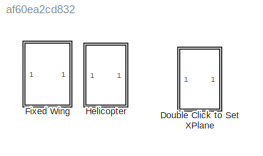
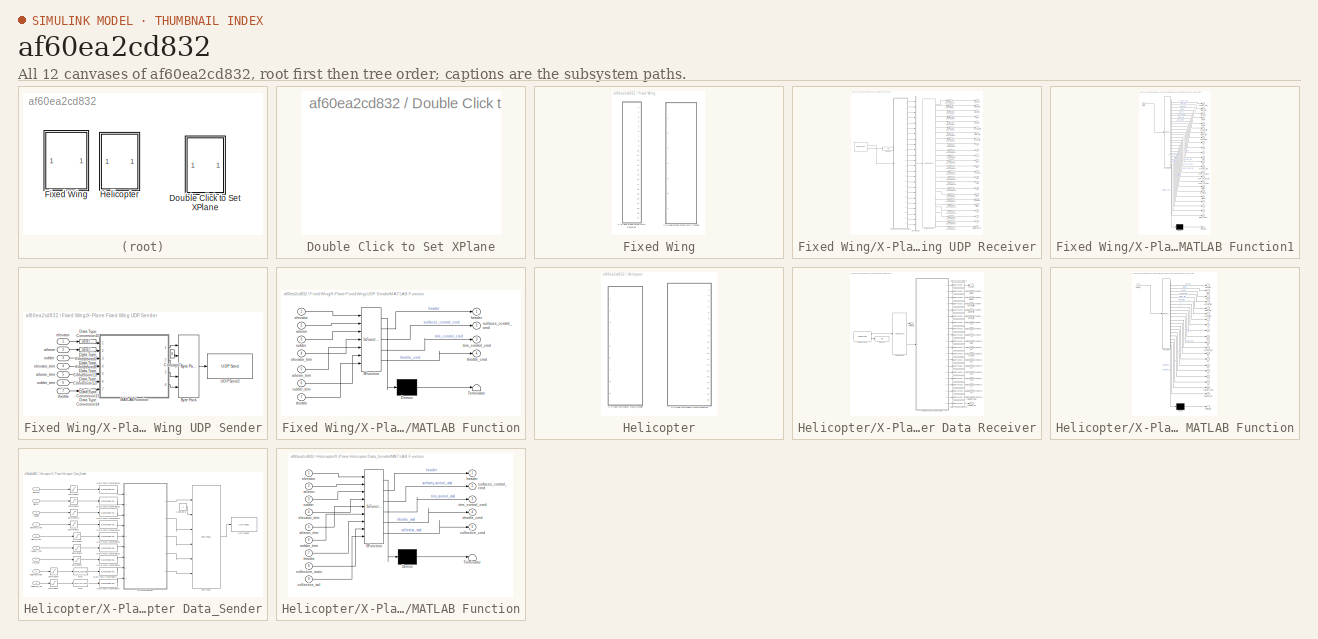
[diagram: thumbnail index - all 12 canvases of the model, root first then tree order]
MODEL slx_af60ea2cd832
KIND library
CONFIG AbsTol = auto
CONFIG EnableMultiTasking = on
CONFIG FixedStep = auto
CONFIG MaxStep = auto
CONFIG MinStep = auto
CONFIG RelTol = 1e-3
CONFIG SampleTimeConstraint = Unconstrained
CONFIG SolverName = ode45
CONFIG StartTime = 0.0
CONFIG StopTime = 10.0
BLOCK [SubSystem] Double Click to Set XPlane
  OpenFcn = selecting_parameters()
  Ports = []
  RequestExecContextInheritance = off
BLOCK [SubSystem] Fixed Wing
  Ports = []
  RequestExecContextInheritance = off
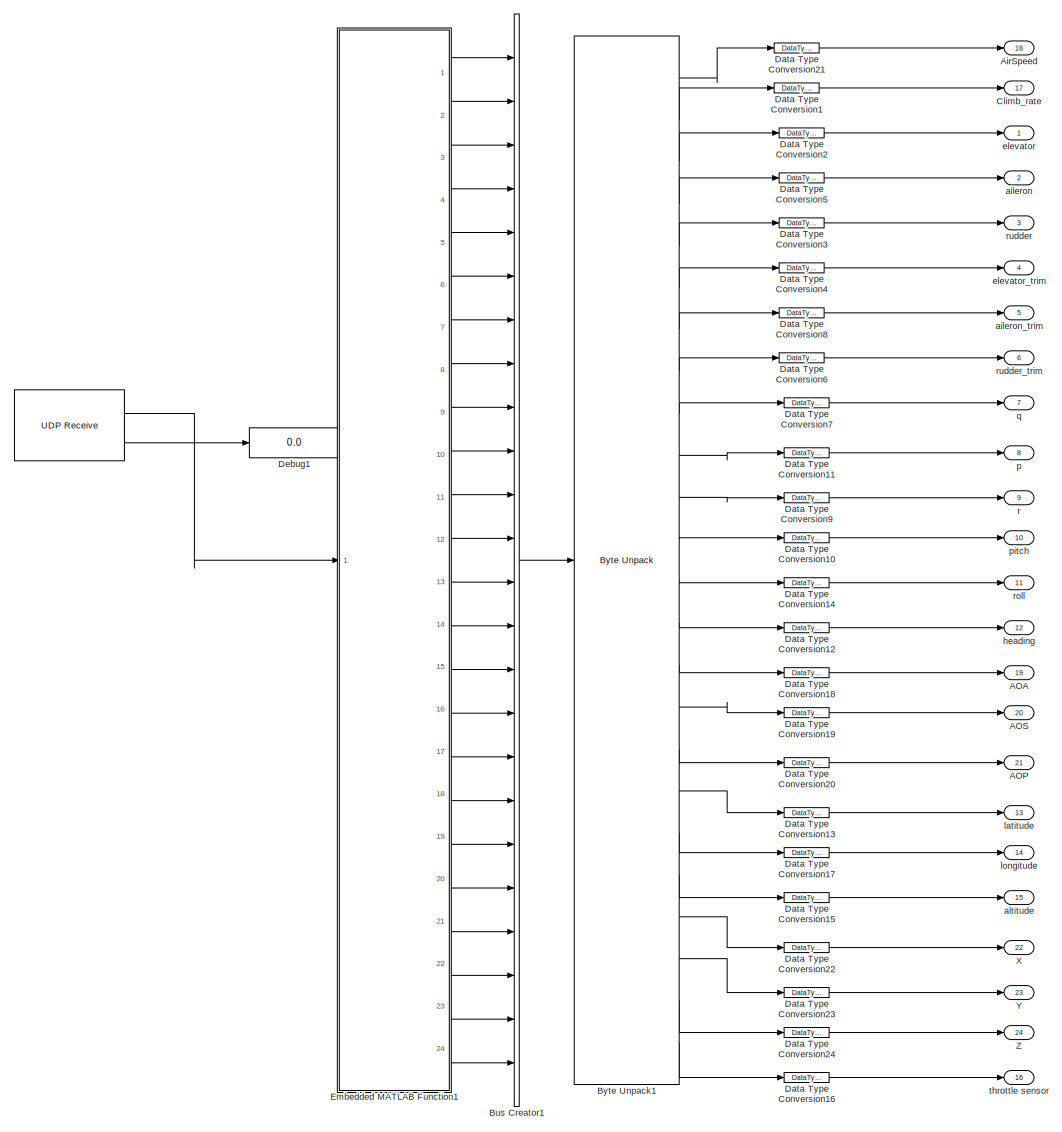
[diagram: Fixed Wing/X-Plane Fixed Wing UDP Receiver - part 1/1, most of the canvas]
BLOCK [SubSystem] Fixed Wing/X-Plane Fixed Wing UDP Receiver
  Ports = [0, 24]
  RequestExecContextInheritance = off
BLOCK [Reference] Fixed Wing/X-Plane Fixed Wing UDP Receiver/      REF=dspnetwork/UDP Receive
  Ports = [0, 2]
  SourceBlock = dspnetwork/UDP Receive
  SourceProductBaseCode = SL
  SourceType = UDP Receive
BLOCK [Outport] Fixed Wing/X-Plane Fixed Wing UDP Receiver/AOA
  Port = 19
BLOCK [Outport] Fixed Wing/X-Plane Fixed Wing UDP Receiver/AOP
  Port = 21
BLOCK [Outport] Fixed Wing/X-Plane Fixed Wing UDP Receiver/AOS
  Port = 20
BLOCK [Outport] Fixed Wing/X-Plane Fixed Wing UDP Receiver/AirSpeed
  Port = 18
BLOCK [BusCreator] Fixed Wing/X-Plane Fixed Wing UDP Receiver/Bus Creator1
  DisplayOption = bar
  InheritFromInputs = on
  Inputs = 24
  Ports = [24, 1]
BLOCK [Reference] Fixed Wing/X-Plane Fixed Wing UDP Receiver/Byte Unpack1  REF=etargetslib/Byte Unpack
  Ports = [1, 24]
  SourceBlock = etargetslib/Byte Unpack
  SourceProductBaseCode = ME
  SourceType = Byte Unpack
BLOCK [Outport] Fixed Wing/X-Plane Fixed Wing UDP Receiver/Climb_rate
  Port = 17
BLOCK [DataTypeConversion] Fixed Wing/X-Plane Fixed Wing UDP Receiver/Data Type Conversion1
  OutDataTypeStr = double
  RndMeth = Floor
BLOCK [DataTypeConversion] Fixed Wing/X-Plane Fixed Wing UDP Receiver/Data Type Conversion10
  OutDataTypeStr = double
  RndMeth = Floor
BLOCK [DataTypeConversion] Fixed Wing/X-Plane Fixed Wing UDP Receiver/Data Type Conversion11
  OutDataTypeStr = double
  RndMeth = Floor
BLOCK [DataTypeConversion] Fixed Wing/X-Plane Fixed Wing UDP Receiver/Data Type Conversion12
  OutDataTypeStr = double
  RndMeth = Floor
BLOCK [DataTypeConversion] Fixed Wing/X-Plane Fixed Wing UDP Receiver/Data Type Conversion13
  OutDataTypeStr = double
  RndMeth = Floor
BLOCK [DataTypeConversion] Fixed Wing/X-Plane Fixed Wing UDP Receiver/Data Type Conversion14
  OutDataTypeStr = double
  RndMeth = Floor
BLOCK [DataTypeConversion] Fixed Wing/X-Plane Fixed Wing UDP Receiver/Data Type Conversion15
  OutDataTypeStr = double
  RndMeth = Floor
BLOCK [DataTypeConversion] Fixed Wing/X-Plane Fixed Wing UDP Receiver/Data Type Conversion16
  OutDataTypeStr = double
  RndMeth = Floor
BLOCK [DataTypeConversion] Fixed Wing/X-Plane Fixed Wing UDP Receiver/Data Type Conversion17
  OutDataTypeStr = double
  RndMeth = Floor
BLOCK [DataTypeConversion] Fixed Wing/X-Plane Fixed Wing UDP Receiver/Data Type Conversion18
  OutDataTypeStr = double
  RndMeth = Floor
BLOCK [DataTypeConversion] Fixed Wing/X-Plane Fixed Wing UDP Receiver/Data Type Conversion19
  OutDataTypeStr = double
  RndMeth = Floor
BLOCK [DataTypeConversion] Fixed Wing/X-Plane Fixed Wing UDP Receiver/Data Type Conversion2
  OutDataTypeStr = double
  RndMeth = Floor
BLOCK [DataTypeConversion] Fixed Wing/X-Plane Fixed Wing UDP Receiver/Data Type Conversion20
  OutDataTypeStr = double
  RndMeth = Floor
BLOCK [DataTypeConversion] Fixed Wing/X-Plane Fixed Wing UDP Receiver/Data Type Conversion21
  OutDataTypeStr = double
  RndMeth = Floor
BLOCK [DataTypeConversion] Fixed Wing/X-Plane Fixed Wing UDP Receiver/Data Type Conversion22
  OutDataTypeStr = double
  RndMeth = Floor
BLOCK [DataTypeConversion] Fixed Wing/X-Plane Fixed Wing UDP Receiver/Data Type Conversion23
  OutDataTypeStr = double
  RndMeth = Floor
BLOCK [DataTypeConversion] Fixed Wing/X-Plane Fixed Wing UDP Receiver/Data Type Conversion24
  OutDataTypeStr = double
  RndMeth = Floor
BLOCK [DataTypeConversion] Fixed Wing/X-Plane Fixed Wing UDP Receiver/Data Type Conversion3
  OutDataTypeStr = double
  RndMeth = Floor
BLOCK [DataTypeConversion] Fixed Wing/X-Plane Fixed Wing UDP Receiver/Data Type Conversion4
  OutDataTypeStr = double
  RndMeth = Floor
BLOCK [DataTypeConversion] Fixed Wing/X-Plane Fixed Wing UDP Receiver/Data Type Conversion5
  OutDataTypeStr = double
  RndMeth = Floor
BLOCK [DataTypeConversion] Fixed Wing/X-Plane Fixed Wing UDP Receiver/Data Type Conversion6
  OutDataTypeStr = double
  RndMeth = Floor
BLOCK [DataTypeConversion] Fixed Wing/X-Plane Fixed Wing UDP Receiver/Data Type Conversion7
  OutDataTypeStr = double
  RndMeth = Floor
BLOCK [DataTypeConversion] Fixed Wing/X-Plane Fixed Wing UDP Receiver/Data Type Conversion8
  OutDataTypeStr = double
  RndMeth = Floor
BLOCK [DataTypeConversion] Fixed Wing/X-Plane Fixed Wing UDP Receiver/Data Type Conversion9
  OutDataTypeStr = double
  RndMeth = Floor
BLOCK [Display] Fixed Wing/X-Plane Fixed Wing UDP Receiver/Debug1 
  Decimation = 1
  Ports = [1]
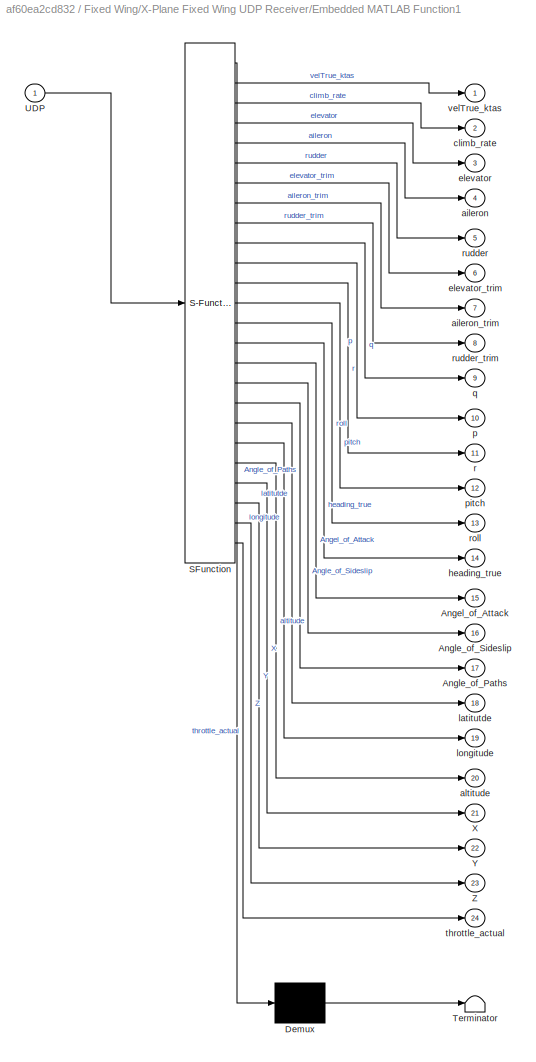
BLOCK [SubSystem] Fixed Wing/X-Plane Fixed Wing UDP Receiver/Embedded MATLAB Function1
  ErrorFcn = Stateflow.Translate.translate
  PermitHierarchicalResolution = ExplicitOnly
  Ports = [1, 24]
  RequestExecContextInheritance = off
  SFBlockType = MATLAB Function
  TreatAsAtomicUnit = on
BLOCK [Demux] Fixed Wing/X-Plane Fixed Wing UDP Receiver/Embedded MATLAB Function1/ Demux 
  Outputs = 1
  Ports = [1, 1]
BLOCK [S-Function] Fixed Wing/X-Plane Fixed Wing UDP Receiver/Embedded MATLAB Function1/ SFunction 
  EnableBusSupport = off
  FunctionName = sf_sfun
  PortCounts = [1 25]
  Ports = [1, 25]
  SFcnIsStateOwnerBlock = off
  SFunctionDeploymentMode = off
  Tag = Stateflow S-Function 1
BLOCK [Terminator] Fixed Wing/X-Plane Fixed Wing UDP Receiver/Embedded MATLAB Function1/ Terminator 
BLOCK [Outport] Fixed Wing/X-Plane Fixed Wing UDP Receiver/Embedded MATLAB Function1/Angel_of_Attack
  Port = 15
BLOCK [Outport] Fixed Wing/X-Plane Fixed Wing UDP Receiver/Embedded MATLAB Function1/Angle_of_Paths
  Port = 17
BLOCK [Outport] Fixed Wing/X-Plane Fixed Wing UDP Receiver/Embedded MATLAB Function1/Angle_of_Sideslip
  Port = 16
BLOCK [Inport] Fixed Wing/X-Plane Fixed Wing UDP Receiver/Embedded MATLAB Function1/UDP
BLOCK [Outport] Fixed Wing/X-Plane Fixed Wing UDP Receiver/Embedded MATLAB Function1/X
  Port = 21
BLOCK [Outport] Fixed Wing/X-Plane Fixed Wing UDP Receiver/Embedded MATLAB Function1/Y
  Port = 22
BLOCK [Outport] Fixed Wing/X-Plane Fixed Wing UDP Receiver/Embedded MATLAB Function1/Z
  Port = 23
BLOCK [Outport] Fixed Wing/X-Plane Fixed Wing UDP Receiver/Embedded MATLAB Function1/aileron
  Port = 4
BLOCK [Outport] Fixed Wing/X-Plane Fixed Wing UDP Receiver/Embedded MATLAB Function1/aileron_trim
  Port = 7
BLOCK [Outport] Fixed Wing/X-Plane Fixed Wing UDP Receiver/Embedded MATLAB Function1/altitude
  Port = 20
BLOCK [Outport] Fixed Wing/X-Plane Fixed Wing UDP Receiver/Embedded MATLAB Function1/climb_rate
  Port = 2
BLOCK [Outport] Fixed Wing/X-Plane Fixed Wing UDP Receiver/Embedded MATLAB Function1/elevator
  Port = 3
BLOCK [Outport] Fixed Wing/X-Plane Fixed Wing UDP Receiver/Embedded MATLAB Function1/elevator_trim
  Port = 6
BLOCK [Outport] Fixed Wing/X-Plane Fixed Wing UDP Receiver/Embedded MATLAB Function1/heading_true
  Port = 14
BLOCK [Outport] Fixed Wing/X-Plane Fixed Wing UDP Receiver/Embedded MATLAB Function1/latitutde
  Port = 18
BLOCK [Outport] Fixed Wing/X-Plane Fixed Wing UDP Receiver/Embedded MATLAB Function1/longitude
  Port = 19
BLOCK [Outport] Fixed Wing/X-Plane Fixed Wing UDP Receiver/Embedded MATLAB Function1/p
  Port = 10
BLOCK [Outport] Fixed Wing/X-Plane Fixed Wing UDP Receiver/Embedded MATLAB Function1/pitch
  Port = 12
BLOCK [Outport] Fixed Wing/X-Plane Fixed Wing UDP Receiver/Embedded MATLAB Function1/q
  Port = 9
BLOCK [Outport] Fixed Wing/X-Plane Fixed Wing UDP Receiver/Embedded MATLAB Function1/r
  Port = 11
BLOCK [Outport] Fixed Wing/X-Plane Fixed Wing UDP Receiver/Embedded MATLAB Function1/roll
  Port = 13
BLOCK [Outport] Fixed Wing/X-Plane Fixed Wing UDP Receiver/Embedded MATLAB Function1/rudder
  Port = 5
BLOCK [Outport] Fixed Wing/X-Plane Fixed Wing UDP Receiver/Embedded MATLAB Function1/rudder_trim
  Port = 8
BLOCK [Outport] Fixed Wing/X-Plane Fixed Wing UDP Receiver/Embedded MATLAB Function1/throttle_actual
  Port = 24
BLOCK [Outport] Fixed Wing/X-Plane Fixed Wing UDP Receiver/Embedded MATLAB Function1/velTrue_ktas
BLOCK [Outport] Fixed Wing/X-Plane Fixed Wing UDP Receiver/X
  Port = 22
BLOCK [Outport] Fixed Wing/X-Plane Fixed Wing UDP Receiver/Y
  Port = 23
BLOCK [Outport] Fixed Wing/X-Plane Fixed Wing UDP Receiver/Z
  Port = 24
BLOCK [Outport] Fixed Wing/X-Plane Fixed Wing UDP Receiver/aileron
  Port = 2
BLOCK [Outport] Fixed Wing/X-Plane Fixed Wing UDP Receiver/aileron_trim
  Port = 5
BLOCK [Outport] Fixed Wing/X-Plane Fixed Wing UDP Receiver/altitude
  Port = 15
BLOCK [Outport] Fixed Wing/X-Plane Fixed Wing UDP Receiver/elevator 
BLOCK [Outport] Fixed Wing/X-Plane Fixed Wing UDP Receiver/elevator_trim
  Port = 4
BLOCK [Outport] Fixed Wing/X-Plane Fixed Wing UDP Receiver/heading
  Port = 12
BLOCK [Outport] Fixed Wing/X-Plane Fixed Wing UDP Receiver/latitude
  Port = 13
BLOCK [Outport] Fixed Wing/X-Plane Fixed Wing UDP Receiver/longitude
  Port = 14
BLOCK [Outport] Fixed Wing/X-Plane Fixed Wing UDP Receiver/p
  Port = 8
BLOCK [Outport] Fixed Wing/X-Plane Fixed Wing UDP Receiver/pitch
  Port = 10
BLOCK [Outport] Fixed Wing/X-Plane Fixed Wing UDP Receiver/q
  Port = 7
BLOCK [Outport] Fixed Wing/X-Plane Fixed Wing UDP Receiver/r
  Port = 9
BLOCK [Outport] Fixed Wing/X-Plane Fixed Wing UDP Receiver/roll
  Port = 11
BLOCK [Outport] Fixed Wing/X-Plane Fixed Wing UDP Receiver/rudder
  Port = 3
BLOCK [Outport] Fixed Wing/X-Plane Fixed Wing UDP Receiver/rudder_trim
  Port = 6
BLOCK [Outport] Fixed Wing/X-Plane Fixed Wing UDP Receiver/throttle sensor
  Port = 16
BLOCK [SubSystem] Fixed Wing/X-Plane Fixed Wing UDP Sender
  Ports = [7]
  RequestExecContextInheritance = off
BLOCK [Reference] Fixed Wing/X-Plane Fixed Wing UDP Sender/Byte Pack  REF=etargetslib/Byte Pack
  Ports = [5, 1]
  SourceBlock = etargetslib/Byte Pack
  SourceProductBaseCode = ME
  SourceType = Byte pack
BLOCK [Constant] Fixed Wing/X-Plane Fixed Wing UDP Sender/Constant7
  OutDataTypeStr = uint8
  Value = 0
BLOCK [DataTypeConversion] Fixed Wing/X-Plane Fixed Wing UDP Sender/Data Type Conversion10
  OutDataTypeStr = single
  RndMeth = Floor
BLOCK [DataTypeConversion] Fixed Wing/X-Plane Fixed Wing UDP Sender/Data Type Conversion11
  OutDataTypeStr = single
  RndMeth = Floor
BLOCK [DataTypeConversion] Fixed Wing/X-Plane Fixed Wing UDP Sender/Data Type Conversion12
  OutDataTypeStr = single
  RndMeth = Floor
BLOCK [DataTypeConversion] Fixed Wing/X-Plane Fixed Wing UDP Sender/Data Type Conversion13
  OutDataTypeStr = single
  RndMeth = Floor
BLOCK [DataTypeConversion] Fixed Wing/X-Plane Fixed Wing UDP Sender/Data Type Conversion14
  OutDataTypeStr = single
  RndMeth = Floor
BLOCK [DataTypeConversion] Fixed Wing/X-Plane Fixed Wing UDP Sender/Data Type Conversion5
  OutDataTypeStr = single
  RndMeth = Floor
BLOCK [DataTypeConversion] Fixed Wing/X-Plane Fixed Wing UDP Sender/Data Type Conversion8
  OutDataTypeStr = single
  RndMeth = Floor
BLOCK [SubSystem] Fixed Wing/X-Plane Fixed Wing UDP Sender/MATLAB Function
  ErrorFcn = Stateflow.Translate.translate
  PermitHierarchicalResolution = ExplicitOnly
  Ports = [7, 4]
  RequestExecContextInheritance = off
  SFBlockType = MATLAB Function
  TreatAsAtomicUnit = on
BLOCK [Demux] Fixed Wing/X-Plane Fixed Wing UDP Sender/MATLAB Function/ Demux 
  Outputs = 1
  Ports = [1, 1]
BLOCK [S-Function] Fixed Wing/X-Plane Fixed Wing UDP Sender/MATLAB Function/ SFunction 
  EnableBusSupport = off
  FunctionName = sf_sfun
  PortCounts = [7 5]
  Ports = [7, 5]
  SFcnIsStateOwnerBlock = off
  SFunctionDeploymentMode = off
  Tag = Stateflow S-Function 4
BLOCK [Terminator] Fixed Wing/X-Plane Fixed Wing UDP Sender/MATLAB Function/ Terminator 
BLOCK [Inport] Fixed Wing/X-Plane Fixed Wing UDP Sender/MATLAB Function/aileron
  Port = 2
BLOCK [Inport] Fixed Wing/X-Plane Fixed Wing UDP Sender/MATLAB Function/aileron_trim
  Port = 5
BLOCK [Inport] Fixed Wing/X-Plane Fixed Wing UDP Sender/MATLAB Function/elevator
BLOCK [Inport] Fixed Wing/X-Plane Fixed Wing UDP Sender/MATLAB Function/elevator_trim
  Port = 4
BLOCK [Outport] Fixed Wing/X-Plane Fixed Wing UDP Sender/MATLAB Function/header
BLOCK [Inport] Fixed Wing/X-Plane Fixed Wing UDP Sender/MATLAB Function/rudder
  Port = 3
BLOCK [Inport] Fixed Wing/X-Plane Fixed Wing UDP Sender/MATLAB Function/rudder_trim
  Port = 6
BLOCK [Outport] Fixed Wing/X-Plane Fixed Wing UDP Sender/MATLAB Function/surfaces_control_cmd
  Port = 2
BLOCK [Inport] Fixed Wing/X-Plane Fixed Wing UDP Sender/MATLAB Function/throttle
  Port = 7
BLOCK [Outport] Fixed Wing/X-Plane Fixed Wing UDP Sender/MATLAB Function/throttle_cmd
  Port = 4
BLOCK [Outport] Fixed Wing/X-Plane Fixed Wing UDP Sender/MATLAB Function/trim_control_cmd
  Port = 3
BLOCK [Reference] Fixed Wing/X-Plane Fixed Wing UDP Sender/UDP Send2  REF=dspnetwork/UDP Send
  Ports = [1]
  SourceBlock = dspnetwork/UDP Send
  SourceProductBaseCode = SL
  SourceType = UDP Send
BLOCK [Inport] Fixed Wing/X-Plane Fixed Wing UDP Sender/aileron
  Port = 2
BLOCK [Inport] Fixed Wing/X-Plane Fixed Wing UDP Sender/aileron_trim
  Port = 5
BLOCK [Inport] Fixed Wing/X-Plane Fixed Wing UDP Sender/elevator
BLOCK [Inport] Fixed Wing/X-Plane Fixed Wing UDP Sender/elevator_trim
  Port = 4
BLOCK [Inport] Fixed Wing/X-Plane Fixed Wing UDP Sender/rudder
  Port = 3
BLOCK [Inport] Fixed Wing/X-Plane Fixed Wing UDP Sender/rudder_trim
  Port = 6
BLOCK [Inport] Fixed Wing/X-Plane Fixed Wing UDP Sender/throttle
  Port = 7
BLOCK [SubSystem] Helicopter
  Ports = []
  RequestExecContextInheritance = off
BLOCK [SubSystem] Helicopter/X-Plane Helicopter Data Receiver
  AncestorBlock = DU2SRI_Heli_Sim/X-Plane Communication Blockset\n/X-Plane Data Receiver
  Ports = [0, 20]
  RequestExecContextInheritance = off
BLOCK [Reference] Helicopter/X-Plane Helicopter Data Receiver/Byte Unpack  REF=etargetslib/Byte Unpack
  Ports = [1, 2]
  SourceBlock = etargetslib/Byte Unpack
  SourceProductBaseCode = ME
  SourceType = Byte Unpack
BLOCK [DataTypeConversion] Helicopter/X-Plane Helicopter Data Receiver/Data Type Conversion1
  OutDataTypeStr = double
  RndMeth = Floor
BLOCK [DataTypeConversion] Helicopter/X-Plane Helicopter Data Receiver/Data Type Conversion10
  OutDataTypeStr = double
  RndMeth = Floor
BLOCK [DataTypeConversion] Helicopter/X-Plane Helicopter Data Receiver/Data Type Conversion11
  OutDataTypeStr = double
  RndMeth = Floor
BLOCK [DataTypeConversion] Helicopter/X-Plane Helicopter Data Receiver/Data Type Conversion12
  OutDataTypeStr = double
  RndMeth = Floor
BLOCK [DataTypeConversion] Helicopter/X-Plane Helicopter Data Receiver/Data Type Conversion13
  OutDataTypeStr = double
  RndMeth = Floor
BLOCK [DataTypeConversion] Helicopter/X-Plane Helicopter Data Receiver/Data Type Conversion14
  OutDataTypeStr = double
  RndMeth = Floor
BLOCK [DataTypeConversion] Helicopter/X-Plane Helicopter Data Receiver/Data Type Conversion15
  OutDataTypeStr = double
  RndMeth = Floor
BLOCK [DataTypeConversion] Helicopter/X-Plane Helicopter Data Receiver/Data Type Conversion16
  OutDataTypeStr = double
  RndMeth = Floor
BLOCK [DataTypeConversion] Helicopter/X-Plane Helicopter Data Receiver/Data Type Conversion17
  OutDataTypeStr = double
  RndMeth = Floor
BLOCK [DataTypeConversion] Helicopter/X-Plane Helicopter Data Receiver/Data Type Conversion18
  OutDataTypeStr = double
  RndMeth = Floor
BLOCK [DataTypeConversion] Helicopter/X-Plane Helicopter Data Receiver/Data Type Conversion19
  OutDataTypeStr = double
  RndMeth = Floor
BLOCK [DataTypeConversion] Helicopter/X-Plane Helicopter Data Receiver/Data Type Conversion2
  OutDataTypeStr = double
  RndMeth = Floor
BLOCK [DataTypeConversion] Helicopter/X-Plane Helicopter Data Receiver/Data Type Conversion20
  OutDataTypeStr = double
  RndMeth = Floor
BLOCK [DataTypeConversion] Helicopter/X-Plane Helicopter Data Receiver/Data Type Conversion3
  OutDataTypeStr = double
  RndMeth = Floor
BLOCK [DataTypeConversion] Helicopter/X-Plane Helicopter Data Receiver/Data Type Conversion4
  OutDataTypeStr = double
  RndMeth = Floor
BLOCK [DataTypeConversion] Helicopter/X-Plane Helicopter Data Receiver/Data Type Conversion5
  OutDataTypeStr = double
  RndMeth = Floor
BLOCK [DataTypeConversion] Helicopter/X-Plane Helicopter Data Receiver/Data Type Conversion6
  OutDataTypeStr = double
  RndMeth = Floor
BLOCK [DataTypeConversion] Helicopter/X-Plane Helicopter Data Receiver/Data Type Conversion7
  OutDataTypeStr = double
  RndMeth = Floor
BLOCK [DataTypeConversion] Helicopter/X-Plane Helicopter Data Receiver/Data Type Conversion8
  OutDataTypeStr = double
  RndMeth = Floor
BLOCK [DataTypeConversion] Helicopter/X-Plane Helicopter Data Receiver/Data Type Conversion9
  OutDataTypeStr = double
  RndMeth = Floor
BLOCK [Display] Helicopter/X-Plane Helicopter Data Receiver/Debug1 
  Decimation = 1
  Ports = [1]
BLOCK [SubSystem] Helicopter/X-Plane Helicopter Data Receiver/Embedded MATLAB Function
  ErrorFcn = Stateflow.Translate.translate
  PermitHierarchicalResolution = ExplicitOnly
  Ports = [1, 20]
  RequestExecContextInheritance = off
  SFBlockType = MATLAB Function
  TreatAsAtomicUnit = on
BLOCK [Demux] Helicopter/X-Plane Helicopter Data Receiver/Embedded MATLAB Function/ Demux 
  Outputs = 1
  Ports = [1, 1]
BLOCK [S-Function] Helicopter/X-Plane Helicopter Data Receiver/Embedded MATLAB Function/ SFunction 
  EnableBusSupport = off
  FunctionName = sf_sfun
  PortCounts = [1 21]
  Ports = [1, 21]
  SFcnIsStateOwnerBlock = off
  SFunctionDeploymentMode = off
  Tag = Stateflow S-Function 13
BLOCK [Terminator] Helicopter/X-Plane Helicopter Data Receiver/Embedded MATLAB Function/ Terminator 
BLOCK [Outport] Helicopter/X-Plane Helicopter Data Receiver/Embedded MATLAB Function/Px
  Port = 13
BLOCK [Outport] Helicopter/X-Plane Helicopter Data Receiver/Embedded MATLAB Function/Py
  Port = 14
BLOCK [Outport] Helicopter/X-Plane Helicopter Data Receiver/Embedded MATLAB Function/Pz
  Port = 15
BLOCK [Outport] Helicopter/X-Plane Helicopter Data Receiver/Embedded MATLAB Function/Vx
  Port = 16
BLOCK [Outport] Helicopter/X-Plane Helicopter Data Receiver/Embedded MATLAB Function/Vy
  Port = 17
BLOCK [Outport] Helicopter/X-Plane Helicopter Data Receiver/Embedded MATLAB Function/Vz
  Port = 18
BLOCK [Outport] Helicopter/X-Plane Helicopter Data Receiver/Embedded MATLAB Function/aileron
  Port = 2
BLOCK [Outport] Helicopter/X-Plane Helicopter Data Receiver/Embedded MATLAB Function/aileron_trim
  Port = 5
BLOCK [Outport] Helicopter/X-Plane Helicopter Data Receiver/Embedded MATLAB Function/collective_main
  Port = 19
BLOCK [Outport] Helicopter/X-Plane Helicopter Data Receiver/Embedded MATLAB Function/collective_tail
  Port = 20
BLOCK [Inport] Helicopter/X-Plane Helicopter Data Receiver/Embedded MATLAB Function/data_in
BLOCK [Outport] Helicopter/X-Plane Helicopter Data Receiver/Embedded MATLAB Function/elevator
BLOCK [Outport] Helicopter/X-Plane Helicopter Data Receiver/Embedded MATLAB Function/elevator_trim
  Port = 4
BLOCK [Outport] Helicopter/X-Plane Helicopter Data Receiver/Embedded MATLAB Function/heading_true
  Port = 12
BLOCK [Outport] Helicopter/X-Plane Helicopter Data Receiver/Embedded MATLAB Function/p
  Port = 8
BLOCK [Outport] Helicopter/X-Plane Helicopter Data Receiver/Embedded MATLAB Function/pitch
  Port = 10
BLOCK [Outport] Helicopter/X-Plane Helicopter Data Receiver/Embedded MATLAB Function/q
  Port = 7
BLOCK [Outport] Helicopter/X-Plane Helicopter Data Receiver/Embedded MATLAB Function/r
  Port = 9
BLOCK [Outport] Helicopter/X-Plane Helicopter Data Receiver/Embedded MATLAB Function/roll
  Port = 11
BLOCK [Outport] Helicopter/X-Plane Helicopter Data Receiver/Embedded MATLAB Function/rudder
  Port = 3
BLOCK [Outport] Helicopter/X-Plane Helicopter Data Receiver/Embedded MATLAB Function/rudder_trim
  Port = 6
BLOCK [Outport] Helicopter/X-Plane Helicopter Data Receiver/Px 2
  Port = 13
BLOCK [Outport] Helicopter/X-Plane Helicopter Data Receiver/Py
  Port = 14
BLOCK [Outport] Helicopter/X-Plane Helicopter Data Receiver/Pz
  Port = 15
BLOCK [Terminator] Helicopter/X-Plane Helicopter Data Receiver/Terminator
BLOCK [Reference] Helicopter/X-Plane Helicopter Data Receiver/UDP Receive3  REF=dspnetwork/UDP Receive
  Ports = [0, 2]
  SourceBlock = dspnetwork/UDP Receive
  SourceProductBaseCode = SL
  SourceType = UDP Receive
BLOCK [Outport] Helicopter/X-Plane Helicopter Data Receiver/Vx
  Port = 16
BLOCK [Outport] Helicopter/X-Plane Helicopter Data Receiver/Vy
  Port = 17
BLOCK [Outport] Helicopter/X-Plane Helicopter Data Receiver/Vz
  Port = 18
BLOCK [Outport] Helicopter/X-Plane Helicopter Data Receiver/aileron
  Port = 2
BLOCK [Outport] Helicopter/X-Plane Helicopter Data Receiver/aileron_trim
  Port = 5
BLOCK [Outport] Helicopter/X-Plane Helicopter Data Receiver/collective_main
  Port = 19
BLOCK [Outport] Helicopter/X-Plane Helicopter Data Receiver/collective_tail
  Port = 20
BLOCK [Outport] Helicopter/X-Plane Helicopter Data Receiver/elevator 
BLOCK [Outport] Helicopter/X-Plane Helicopter Data Receiver/elevator_trim
  Port = 4
BLOCK [Outport] Helicopter/X-Plane Helicopter Data Receiver/heading
  Port = 12
BLOCK [Outport] Helicopter/X-Plane Helicopter Data Receiver/p
  Port = 8
BLOCK [Outport] Helicopter/X-Plane Helicopter Data Receiver/pitch
  Port = 10
BLOCK [Outport] Helicopter/X-Plane Helicopter Data Receiver/q
  Port = 7
BLOCK [Outport] Helicopter/X-Plane Helicopter Data Receiver/r
  Port = 9
BLOCK [Outport] Helicopter/X-Plane Helicopter Data Receiver/roll
  Port = 11
BLOCK [Outport] Helicopter/X-Plane Helicopter Data Receiver/rudder
  Port = 3
BLOCK [Outport] Helicopter/X-Plane Helicopter Data Receiver/rudder_trim
  Port = 6
BLOCK [SubSystem] Helicopter/X-Plane Helicopter Data_Sender
  AncestorBlock = DU2SRI_Heli_Sim/X-Plane Communication Blockset\n/X-Plane Data_Sender
  Ports = [9]
  RequestExecContextInheritance = off
BLOCK [Reference] Helicopter/X-Plane Helicopter Data_Sender/Byte Pack  REF=etargetslib/Byte Pack
  Ports = [6, 1]
  SourceBlock = etargetslib/Byte Pack
  SourceProductBaseCode = ME
  SourceType = Byte pack
BLOCK [Constant] Helicopter/X-Plane Helicopter Data_Sender/Constant5
  OutDataTypeStr = uint8
  Value = 0
BLOCK [DataTypeConversion] Helicopter/X-Plane Helicopter Data_Sender/Data Type Conversion10
  OutDataTypeStr = single
  RndMeth = Floor
BLOCK [DataTypeConversion] Helicopter/X-Plane Helicopter Data_Sender/Data Type Conversion11
  OutDataTypeStr = single
  RndMeth = Floor
BLOCK [DataTypeConversion] Helicopter/X-Plane Helicopter Data_Sender/Data Type Conversion12
  OutDataTypeStr = single
  RndMeth = Floor
BLOCK [DataTypeConversion] Helicopter/X-Plane Helicopter Data_Sender/Data Type Conversion13
  OutDataTypeStr = single
  RndMeth = Floor
BLOCK [DataTypeConversion] Helicopter/X-Plane Helicopter Data_Sender/Data Type Conversion14
  OutDataTypeStr = single
  RndMeth = Floor
BLOCK [DataTypeConversion] Helicopter/X-Plane Helicopter Data_Sender/Data Type Conversion15
  OutDataTypeStr = single
  RndMeth = Floor
BLOCK [DataTypeConversion] Helicopter/X-Plane Helicopter Data_Sender/Data Type Conversion16
  OutDataTypeStr = single
  RndMeth = Floor
BLOCK [DataTypeConversion] Helicopter/X-Plane Helicopter Data_Sender/Data Type Conversion17
  OutDataTypeStr = single
  RndMeth = Floor
BLOCK [DataTypeConversion] Helicopter/X-Plane Helicopter Data_Sender/Data Type Conversion18
  OutDataTypeStr = single
  RndMeth = Floor
BLOCK [Fcn] Helicopter/X-Plane Helicopter Data_Sender/Fcn2
  Expr = u*max_col_main
BLOCK [Fcn] Helicopter/X-Plane Helicopter Data_Sender/Fcn3
  Expr = ((u+1)/2)*(max_col_tail-min_col_tail)+min_col_tail
BLOCK [SubSystem] Helicopter/X-Plane Helicopter Data_Sender/MATLAB Function
  ErrorFcn = Stateflow.Translate.translate
  PermitHierarchicalResolution = ExplicitOnly
  Ports = [9, 5]
  RequestExecContextInheritance = off
  SFBlockType = MATLAB Function
  TreatAsAtomicUnit = on
BLOCK [Demux] Helicopter/X-Plane Helicopter Data_Sender/MATLAB Function/ Demux 
  Outputs = 1
  Ports = [1, 1]
BLOCK [S-Function] Helicopter/X-Plane Helicopter Data_Sender/MATLAB Function/ SFunction 
  EnableBusSupport = off
  FunctionName = sf_sfun
  PortCounts = [9 6]
  Ports = [9, 6]
  SFcnIsStateOwnerBlock = off
  SFunctionDeploymentMode = off
  Tag = Stateflow S-Function 2
BLOCK [Terminator] Helicopter/X-Plane Helicopter Data_Sender/MATLAB Function/ Terminator 
BLOCK [Inport] Helicopter/X-Plane Helicopter Data_Sender/MATLAB Function/aileron
  Port = 2
BLOCK [Inport] Helicopter/X-Plane Helicopter Data_Sender/MATLAB Function/aileron_trim
  Port = 5
BLOCK [Outport] Helicopter/X-Plane Helicopter Data_Sender/MATLAB Function/collective_cmd
  Port = 5
BLOCK [Inport] Helicopter/X-Plane Helicopter Data_Sender/MATLAB Function/collective_main
  Port = 8
BLOCK [Inport] Helicopter/X-Plane Helicopter Data_Sender/MATLAB Function/collective_tail
  Port = 9
BLOCK [Inport] Helicopter/X-Plane Helicopter Data_Sender/MATLAB Function/elevator
BLOCK [Inport] Helicopter/X-Plane Helicopter Data_Sender/MATLAB Function/elevator_trim
  Port = 4
BLOCK [Outport] Helicopter/X-Plane Helicopter Data_Sender/MATLAB Function/header
BLOCK [Inport] Helicopter/X-Plane Helicopter Data_Sender/MATLAB Function/rudder
  Port = 3
BLOCK [Inport] Helicopter/X-Plane Helicopter Data_Sender/MATLAB Function/rudder_trim
  Port = 6
BLOCK [Outport] Helicopter/X-Plane Helicopter Data_Sender/MATLAB Function/surfaces_control_cmd
  Port = 2
BLOCK [Inport] Helicopter/X-Plane Helicopter Data_Sender/MATLAB Function/throttle
  Port = 7
BLOCK [Outport] Helicopter/X-Plane Helicopter Data_Sender/MATLAB Function/trhottle_cmd
  Port = 4
BLOCK [Outport] Helicopter/X-Plane Helicopter Data_Sender/MATLAB Function/trim_control_cmd
  Port = 3
BLOCK [Saturate] Helicopter/X-Plane Helicopter Data_Sender/Saturation1
  LowerLimit = -1
  UpperLimit = +1
BLOCK [Saturate] Helicopter/X-Plane Helicopter Data_Sender/Saturation10
  LowerLimit = -1
  UpperLimit = +1
BLOCK [Saturate] Helicopter/X-Plane Helicopter Data_Sender/Saturation11
  LowerLimit = -1
  UpperLimit = +1
BLOCK [Saturate] Helicopter/X-Plane Helicopter Data_Sender/Saturation2
  LowerLimit = -1
  UpperLimit = +1
BLOCK [Saturate] Helicopter/X-Plane Helicopter Data_Sender/Saturation3
  LowerLimit = -1
  UpperLimit = +1
BLOCK [Saturate] Helicopter/X-Plane Helicopter Data_Sender/Saturation6
  LowerLimit = -1
  UpperLimit = +1
BLOCK [Saturate] Helicopter/X-Plane Helicopter Data_Sender/Saturation7
  LowerLimit = -1
  UpperLimit = +1
BLOCK [Saturate] Helicopter/X-Plane Helicopter Data_Sender/Saturation8
  LowerLimit = -1
  UpperLimit = +1
BLOCK [Saturate] Helicopter/X-Plane Helicopter Data_Sender/Saturation9
  LowerLimit = -1
  UpperLimit = +1
BLOCK [Reference] Helicopter/X-Plane Helicopter Data_Sender/UDP Send2  REF=dspnetwork/UDP Send
  Ports = [1]
  SourceBlock = dspnetwork/UDP Send
  SourceProductBaseCode = SL
  SourceType = UDP Send
BLOCK [Inport] Helicopter/X-Plane Helicopter Data_Sender/aileron
  Port = 2
BLOCK [Inport] Helicopter/X-Plane Helicopter Data_Sender/aileron_trim
  Port = 5
BLOCK [Inport] Helicopter/X-Plane Helicopter Data_Sender/collective_main
  Port = 8
BLOCK [Inport] Helicopter/X-Plane Helicopter Data_Sender/collective_tail
  Port = 9
BLOCK [Inport] Helicopter/X-Plane Helicopter Data_Sender/elevator
BLOCK [Inport] Helicopter/X-Plane Helicopter Data_Sender/elevator_trim
  Port = 4
BLOCK [Inport] Helicopter/X-Plane Helicopter Data_Sender/rudder
  Port = 3
BLOCK [Inport] Helicopter/X-Plane Helicopter Data_Sender/rudder_trim
  Port = 6
BLOCK [Inport] Helicopter/X-Plane Helicopter Data_Sender/throttle
  Port = 7
LINE Fixed Wing/X-Plane Fixed Wing UDP Receiver/    :1 -> Fixed Wing/X-Plane Fixed Wing UDP Receiver/Embedded MATLAB Function1:1
LINE Fixed Wing/X-Plane Fixed Wing UDP Receiver/    :2 -> Fixed Wing/X-Plane Fixed Wing UDP Receiver/Debug1 :1
LINE Fixed Wing/X-Plane Fixed Wing UDP Receiver/Bus Creator1:1 -> Fixed Wing/X-Plane Fixed Wing UDP Receiver/Byte Unpack1:1
LINE Fixed Wing/X-Plane Fixed Wing UDP Receiver/Byte Unpack1:1 -> Fixed Wing/X-Plane Fixed Wing UDP Receiver/Data Type Conversion21:1
LINE Fixed Wing/X-Plane Fixed Wing UDP Receiver/Byte Unpack1:10 -> Fixed Wing/X-Plane Fixed Wing UDP Receiver/Data Type Conversion11:1
LINE Fixed Wing/X-Plane Fixed Wing UDP Receiver/Byte Unpack1:11 -> Fixed Wing/X-Plane Fixed Wing UDP Receiver/Data Type Conversion9:1
LINE Fixed Wing/X-Plane Fixed Wing UDP Receiver/Byte Unpack1:12 -> Fixed Wing/X-Plane Fixed Wing UDP Receiver/Data Type Conversion10:1
LINE Fixed Wing/X-Plane Fixed Wing UDP Receiver/Byte Unpack1:13 -> Fixed Wing/X-Plane Fixed Wing UDP Receiver/Data Type Conversion14:1
LINE Fixed Wing/X-Plane Fixed Wing UDP Receiver/Byte Unpack1:14 -> Fixed Wing/X-Plane Fixed Wing UDP Receiver/Data Type Conversion12:1
LINE Fixed Wing/X-Plane Fixed Wing UDP Receiver/Byte Unpack1:15 -> Fixed Wing/X-Plane Fixed Wing UDP Receiver/Data Type Conversion18:1
LINE Fixed Wing/X-Plane Fixed Wing UDP Receiver/Byte Unpack1:16 -> Fixed Wing/X-Plane Fixed Wing UDP Receiver/Data Type Conversion19:1
LINE Fixed Wing/X-Plane Fixed Wing UDP Receiver/Byte Unpack1:17 -> Fixed Wing/X-Plane Fixed Wing UDP Receiver/Data Type Conversion20:1
LINE Fixed Wing/X-Plane Fixed Wing UDP Receiver/Byte Unpack1:18 -> Fixed Wing/X-Plane Fixed Wing UDP Receiver/Data Type Conversion13:1
LINE Fixed Wing/X-Plane Fixed Wing UDP Receiver/Byte Unpack1:19 -> Fixed Wing/X-Plane Fixed Wing UDP Receiver/Data Type Conversion17:1
LINE Fixed Wing/X-Plane Fixed Wing UDP Receiver/Byte Unpack1:2 -> Fixed Wing/X-Plane Fixed Wing UDP Receiver/Data Type Conversion1:1
LINE Fixed Wing/X-Plane Fixed Wing UDP Receiver/Byte Unpack1:20 -> Fixed Wing/X-Plane Fixed Wing UDP Receiver/Data Type Conversion15:1
LINE Fixed Wing/X-Plane Fixed Wing UDP Receiver/Byte Unpack1:21 -> Fixed Wing/X-Plane Fixed Wing UDP Receiver/Data Type Conversion22:1
LINE Fixed Wing/X-Plane Fixed Wing UDP Receiver/Byte Unpack1:22 -> Fixed Wing/X-Plane Fixed Wing UDP Receiver/Data Type Conversion23:1
LINE Fixed Wing/X-Plane Fixed Wing UDP Receiver/Byte Unpack1:23 -> Fixed Wing/X-Plane Fixed Wing UDP Receiver/Data Type Conversion24:1
LINE Fixed Wing/X-Plane Fixed Wing UDP Receiver/Byte Unpack1:24 -> Fixed Wing/X-Plane Fixed Wing UDP Receiver/Data Type Conversion16:1
LINE Fixed Wing/X-Plane Fixed Wing UDP Receiver/Byte Unpack1:3 -> Fixed Wing/X-Plane Fixed Wing UDP Receiver/Data Type Conversion2:1
LINE Fixed Wing/X-Plane Fixed Wing UDP Receiver/Byte Unpack1:4 -> Fixed Wing/X-Plane Fixed Wing UDP Receiver/Data Type Conversion5:1
LINE Fixed Wing/X-Plane Fixed Wing UDP Receiver/Byte Unpack1:5 -> Fixed Wing/X-Plane Fixed Wing UDP Receiver/Data Type Conversion3:1
LINE Fixed Wing/X-Plane Fixed Wing UDP Receiver/Byte Unpack1:6 -> Fixed Wing/X-Plane Fixed Wing UDP Receiver/Data Type Conversion4:1
LINE Fixed Wing/X-Plane Fixed Wing UDP Receiver/Byte Unpack1:7 -> Fixed Wing/X-Plane Fixed Wing UDP Receiver/Data Type Conversion8:1
LINE Fixed Wing/X-Plane Fixed Wing UDP Receiver/Byte Unpack1:8 -> Fixed Wing/X-Plane Fixed Wing UDP Receiver/Data Type Conversion6:1
LINE Fixed Wing/X-Plane Fixed Wing UDP Receiver/Byte Unpack1:9 -> Fixed Wing/X-Plane Fixed Wing UDP Receiver/Data Type Conversion7:1
LINE Fixed Wing/X-Plane Fixed Wing UDP Receiver/Data Type Conversion10:1 -> Fixed Wing/X-Plane Fixed Wing UDP Receiver/pitch:1
LINE Fixed Wing/X-Plane Fixed Wing UDP Receiver/Data Type Conversion11:1 -> Fixed Wing/X-Plane Fixed Wing UDP Receiver/p:1
LINE Fixed Wing/X-Plane Fixed Wing UDP Receiver/Data Type Conversion12:1 -> Fixed Wing/X-Plane Fixed Wing UDP Receiver/heading:1
LINE Fixed Wing/X-Plane Fixed Wing UDP Receiver/Data Type Conversion13:1 -> Fixed Wing/X-Plane Fixed Wing UDP Receiver/latitude:1
LINE Fixed Wing/X-Plane Fixed Wing UDP Receiver/Data Type Conversion14:1 -> Fixed Wing/X-Plane Fixed Wing UDP Receiver/roll:1
LINE Fixed Wing/X-Plane Fixed Wing UDP Receiver/Data Type Conversion15:1 -> Fixed Wing/X-Plane Fixed Wing UDP Receiver/altitude:1
LINE Fixed Wing/X-Plane Fixed Wing UDP Receiver/Data Type Conversion16:1 -> Fixed Wing/X-Plane Fixed Wing UDP Receiver/throttle sensor:1
LINE Fixed Wing/X-Plane Fixed Wing UDP Receiver/Data Type Conversion17:1 -> Fixed Wing/X-Plane Fixed Wing UDP Receiver/longitude:1
LINE Fixed Wing/X-Plane Fixed Wing UDP Receiver/Data Type Conversion18:1 -> Fixed Wing/X-Plane Fixed Wing UDP Receiver/AOA:1
LINE Fixed Wing/X-Plane Fixed Wing UDP Receiver/Data Type Conversion19:1 -> Fixed Wing/X-Plane Fixed Wing UDP Receiver/AOS:1
LINE Fixed Wing/X-Plane Fixed Wing UDP Receiver/Data Type Conversion1:1 -> Fixed Wing/X-Plane Fixed Wing UDP Receiver/Climb_rate:1
LINE Fixed Wing/X-Plane Fixed Wing UDP Receiver/Data Type Conversion20:1 -> Fixed Wing/X-Plane Fixed Wing UDP Receiver/AOP:1
LINE Fixed Wing/X-Plane Fixed Wing UDP Receiver/Data Type Conversion21:1 -> Fixed Wing/X-Plane Fixed Wing UDP Receiver/AirSpeed:1
LINE Fixed Wing/X-Plane Fixed Wing UDP Receiver/Data Type Conversion22:1 -> Fixed Wing/X-Plane Fixed Wing UDP Receiver/X:1
LINE Fixed Wing/X-Plane Fixed Wing UDP Receiver/Data Type Conversion23:1 -> Fixed Wing/X-Plane Fixed Wing UDP Receiver/Y:1
LINE Fixed Wing/X-Plane Fixed Wing UDP Receiver/Data Type Conversion24:1 -> Fixed Wing/X-Plane Fixed Wing UDP Receiver/Z:1
LINE Fixed Wing/X-Plane Fixed Wing UDP Receiver/Data Type Conversion2:1 -> Fixed Wing/X-Plane Fixed Wing UDP Receiver/elevator :1
LINE Fixed Wing/X-Plane Fixed Wing UDP Receiver/Data Type Conversion3:1 -> Fixed Wing/X-Plane Fixed Wing UDP Receiver/rudder:1
LINE Fixed Wing/X-Plane Fixed Wing UDP Receiver/Data Type Conversion4:1 -> Fixed Wing/X-Plane Fixed Wing UDP Receiver/elevator_trim:1
LINE Fixed Wing/X-Plane Fixed Wing UDP Receiver/Data Type Conversion5:1 -> Fixed Wing/X-Plane Fixed Wing UDP Receiver/aileron:1
LINE Fixed Wing/X-Plane Fixed Wing UDP Receiver/Data Type Conversion6:1 -> Fixed Wing/X-Plane Fixed Wing UDP Receiver/rudder_trim:1
LINE Fixed Wing/X-Plane Fixed Wing UDP Receiver/Data Type Conversion7:1 -> Fixed Wing/X-Plane Fixed Wing UDP Receiver/q:1
LINE Fixed Wing/X-Plane Fixed Wing UDP Receiver/Data Type Conversion8:1 -> Fixed Wing/X-Plane Fixed Wing UDP Receiver/aileron_trim:1
LINE Fixed Wing/X-Plane Fixed Wing UDP Receiver/Data Type Conversion9:1 -> Fixed Wing/X-Plane Fixed Wing UDP Receiver/r:1
LINE Fixed Wing/X-Plane Fixed Wing UDP Receiver/Embedded MATLAB Function1:1 -> Fixed Wing/X-Plane Fixed Wing UDP Receiver/Bus Creator1:1
LINE Fixed Wing/X-Plane Fixed Wing UDP Receiver/Embedded MATLAB Function1:10 -> Fixed Wing/X-Plane Fixed Wing UDP Receiver/Bus Creator1:10
LINE Fixed Wing/X-Plane Fixed Wing UDP Receiver/Embedded MATLAB Function1:11 -> Fixed Wing/X-Plane Fixed Wing UDP Receiver/Bus Creator1:11
LINE Fixed Wing/X-Plane Fixed Wing UDP Receiver/Embedded MATLAB Function1:12 -> Fixed Wing/X-Plane Fixed Wing UDP Receiver/Bus Creator1:12
LINE Fixed Wing/X-Plane Fixed Wing UDP Receiver/Embedded MATLAB Function1:13 -> Fixed Wing/X-Plane Fixed Wing UDP Receiver/Bus Creator1:13
LINE Fixed Wing/X-Plane Fixed Wing UDP Receiver/Embedded MATLAB Function1:14 -> Fixed Wing/X-Plane Fixed Wing UDP Receiver/Bus Creator1:14
LINE Fixed Wing/X-Plane Fixed Wing UDP Receiver/Embedded MATLAB Function1:15 -> Fixed Wing/X-Plane Fixed Wing UDP Receiver/Bus Creator1:15
LINE Fixed Wing/X-Plane Fixed Wing UDP Receiver/Embedded MATLAB Function1:16 -> Fixed Wing/X-Plane Fixed Wing UDP Receiver/Bus Creator1:16
LINE Fixed Wing/X-Plane Fixed Wing UDP Receiver/Embedded MATLAB Function1:17 -> Fixed Wing/X-Plane Fixed Wing UDP Receiver/Bus Creator1:17
LINE Fixed Wing/X-Plane Fixed Wing UDP Receiver/Embedded MATLAB Function1:18 -> Fixed Wing/X-Plane Fixed Wing UDP Receiver/Bus Creator1:18
LINE Fixed Wing/X-Plane Fixed Wing UDP Receiver/Embedded MATLAB Function1:19 -> Fixed Wing/X-Plane Fixed Wing UDP Receiver/Bus Creator1:19
LINE Fixed Wing/X-Plane Fixed Wing UDP Receiver/Embedded MATLAB Function1:2 -> Fixed Wing/X-Plane Fixed Wing UDP Receiver/Bus Creator1:2
LINE Fixed Wing/X-Plane Fixed Wing UDP Receiver/Embedded MATLAB Function1:20 -> Fixed Wing/X-Plane Fixed Wing UDP Receiver/Bus Creator1:20
LINE Fixed Wing/X-Plane Fixed Wing UDP Receiver/Embedded MATLAB Function1:21 -> Fixed Wing/X-Plane Fixed Wing UDP Receiver/Bus Creator1:21
LINE Fixed Wing/X-Plane Fixed Wing UDP Receiver/Embedded MATLAB Function1:22 -> Fixed Wing/X-Plane Fixed Wing UDP Receiver/Bus Creator1:22
LINE Fixed Wing/X-Plane Fixed Wing UDP Receiver/Embedded MATLAB Function1:23 -> Fixed Wing/X-Plane Fixed Wing UDP Receiver/Bus Creator1:23
LINE Fixed Wing/X-Plane Fixed Wing UDP Receiver/Embedded MATLAB Function1:24 -> Fixed Wing/X-Plane Fixed Wing UDP Receiver/Bus Creator1:24
LINE Fixed Wing/X-Plane Fixed Wing UDP Receiver/Embedded MATLAB Function1:3 -> Fixed Wing/X-Plane Fixed Wing UDP Receiver/Bus Creator1:3
LINE Fixed Wing/X-Plane Fixed Wing UDP Receiver/Embedded MATLAB Function1:4 -> Fixed Wing/X-Plane Fixed Wing UDP Receiver/Bus Creator1:4
LINE Fixed Wing/X-Plane Fixed Wing UDP Receiver/Embedded MATLAB Function1:5 -> Fixed Wing/X-Plane Fixed Wing UDP Receiver/Bus Creator1:5
LINE Fixed Wing/X-Plane Fixed Wing UDP Receiver/Embedded MATLAB Function1:6 -> Fixed Wing/X-Plane Fixed Wing UDP Receiver/Bus Creator1:6
LINE Fixed Wing/X-Plane Fixed Wing UDP Receiver/Embedded MATLAB Function1:7 -> Fixed Wing/X-Plane Fixed Wing UDP Receiver/Bus Creator1:7
LINE Fixed Wing/X-Plane Fixed Wing UDP Receiver/Embedded MATLAB Function1:8 -> Fixed Wing/X-Plane Fixed Wing UDP Receiver/Bus Creator1:8
LINE Fixed Wing/X-Plane Fixed Wing UDP Receiver/Embedded MATLAB Function1:9 -> Fixed Wing/X-Plane Fixed Wing UDP Receiver/Bus Creator1:9
LINE Fixed Wing/X-Plane Fixed Wing UDP Sender/Byte Pack:1 -> Fixed Wing/X-Plane Fixed Wing UDP Sender/UDP Send2:1
LINE Fixed Wing/X-Plane Fixed Wing UDP Sender/Constant7:1 -> Fixed Wing/X-Plane Fixed Wing UDP Sender/Byte Pack:2
LINE Fixed Wing/X-Plane Fixed Wing UDP Sender/Data Type Conversion10:1 -> Fixed Wing/X-Plane Fixed Wing UDP Sender/MATLAB Function:1
LINE Fixed Wing/X-Plane Fixed Wing UDP Sender/Data Type Conversion11:1 -> Fixed Wing/X-Plane Fixed Wing UDP Sender/MATLAB Function:4
LINE Fixed Wing/X-Plane Fixed Wing UDP Sender/Data Type Conversion12:1 -> Fixed Wing/X-Plane Fixed Wing UDP Sender/MATLAB Function:5
LINE Fixed Wing/X-Plane Fixed Wing UDP Sender/Data Type Conversion13:1 -> Fixed Wing/X-Plane Fixed Wing UDP Sender/MATLAB Function:6
LINE Fixed Wing/X-Plane Fixed Wing UDP Sender/Data Type Conversion14:1 -> Fixed Wing/X-Plane Fixed Wing UDP Sender/MATLAB Function:7
LINE Fixed Wing/X-Plane Fixed Wing UDP Sender/Data Type Conversion5:1 -> Fixed Wing/X-Plane Fixed Wing UDP Sender/MATLAB Function:2
LINE Fixed Wing/X-Plane Fixed Wing UDP Sender/Data Type Conversion8:1 -> Fixed Wing/X-Plane Fixed Wing UDP Sender/MATLAB Function:3
LINE Fixed Wing/X-Plane Fixed Wing UDP Sender/MATLAB Function:1 -> Fixed Wing/X-Plane Fixed Wing UDP Sender/Byte Pack:1
LINE Fixed Wing/X-Plane Fixed Wing UDP Sender/MATLAB Function:2 -> Fixed Wing/X-Plane Fixed Wing UDP Sender/Byte Pack:3
LINE Fixed Wing/X-Plane Fixed Wing UDP Sender/MATLAB Function:3 -> Fixed Wing/X-Plane Fixed Wing UDP Sender/Byte Pack:4
LINE Fixed Wing/X-Plane Fixed Wing UDP Sender/MATLAB Function:4 -> Fixed Wing/X-Plane Fixed Wing UDP Sender/Byte Pack:5
LINE Fixed Wing/X-Plane Fixed Wing UDP Sender/aileron:1 -> Fixed Wing/X-Plane Fixed Wing UDP Sender/Data Type Conversion5:1
LINE Fixed Wing/X-Plane Fixed Wing UDP Sender/aileron_trim:1 -> Fixed Wing/X-Plane Fixed Wing UDP Sender/Data Type Conversion12:1
LINE Fixed Wing/X-Plane Fixed Wing UDP Sender/elevator:1 -> Fixed Wing/X-Plane Fixed Wing UDP Sender/Data Type Conversion10:1
LINE Fixed Wing/X-Plane Fixed Wing UDP Sender/elevator_trim:1 -> Fixed Wing/X-Plane Fixed Wing UDP Sender/Data Type Conversion11:1
LINE Fixed Wing/X-Plane Fixed Wing UDP Sender/rudder:1 -> Fixed Wing/X-Plane Fixed Wing UDP Sender/Data Type Conversion8:1
LINE Fixed Wing/X-Plane Fixed Wing UDP Sender/rudder_trim:1 -> Fixed Wing/X-Plane Fixed Wing UDP Sender/Data Type Conversion13:1
LINE Fixed Wing/X-Plane Fixed Wing UDP Sender/throttle:1 -> Fixed Wing/X-Plane Fixed Wing UDP Sender/Data Type Conversion14:1
CHART Helicopter/X-Plane Helicopter Data Receiver/Embedded
MATLAB Function states=1 transitions=1
  STATE_LABEL 'eML_blk_kernel()'
  STATE_LABEL 'SCRIPT:\nfunction [elevator, aileron, rudder, elevator_trim, aileron_trim, rudder_trim, q,p,r, pitch, roll, heading_true, Px, Py, Pz, Vx, Vy, Vz, collective_main, collective_tail]   = fcn(data_in)\n% This block supports the Embedded MATLAB subset.\n% See the help menu for details. \n\nelevator = data_in(2,1);\naileron = data_in(3,1);\nrudder= data_in(4,1);\n\n\nelevator_trim= data_in(2,2);\naileron_trim= dat...<+331ch>'
CHART Fixed Wing/X-Plane Fixed Wing UDP Receiver/Embedded
MATLAB Function1 states=1 transitions=1
  STATE_LABEL 'eML_blk_kernel()'
  STATE_LABEL 'SCRIPT:\n% X-PLANE: Channels 3,4,8,13,16,17,18,20,21,26\n%---------------------------------------------------------------------------------------------------\n% flight_con = [elev ailrn ruddr];                         %flight controls\n% attitude = [pitch roll hding_true hding_mag];            %pitch,roll,yaw\n% location = [lat lon alt_msl alt_agl];                    &x,y,z\n% %latitude,longitude,altit...<+2564ch>'
CHART Helicopter/X-Plane Helicopter Data_Sender/MATLAB Function states=1 transitions=1
  STATE_LABEL 'eML_blk_kernel()'
  STATE_LABEL "SCRIPT:\nfunction [header, surfaces_control_cmd,trim_control_cmd,trhottle_cmd,collective_cmd]  = fcn(elevator, aileron, rudder, elevator_trim, aileron_trim, rudder_trim, throttle, collective_main, collective_tail)\n% This block supports the Embedded MATLAB subset.\n% See the help menu for details. \n\nheader = typecast(uint8([uint8(68) uint8(65) uint8(84) uint8(65)]), 'single');\n\n\n\n\nNo_Comand = single(...<+1709ch>"
CHART Fixed Wing/X-Plane Fixed Wing UDP Sender/MATLAB Function states=1 transitions=1
  STATE_LABEL 'eML_blk_kernel()'
  STATE_LABEL "SCRIPT:\nfunction [header, surfaces_control_cmd,trim_control_cmd, throttle_cmd]  = fcn(elevator, aileron, rudder, elevator_trim, aileron_trim, rudder_trim, throttle)\n% This block supports the Embedded MATLAB subset.\n% See the help menu for details. \n\nheader = typecast(uint8([uint8(68) uint8(65) uint8(84) uint8(65)]), 'single');\n\n\n\nNo_Comand = single(-999);\n\nSurface_header = typecast(uint8([uint8(8)...<+1457ch>"
CHART  states=0 transitions=0
CHART  states=0 transitions=0
CHART  states=0 transitions=0
CHART  states=0 transitions=0
